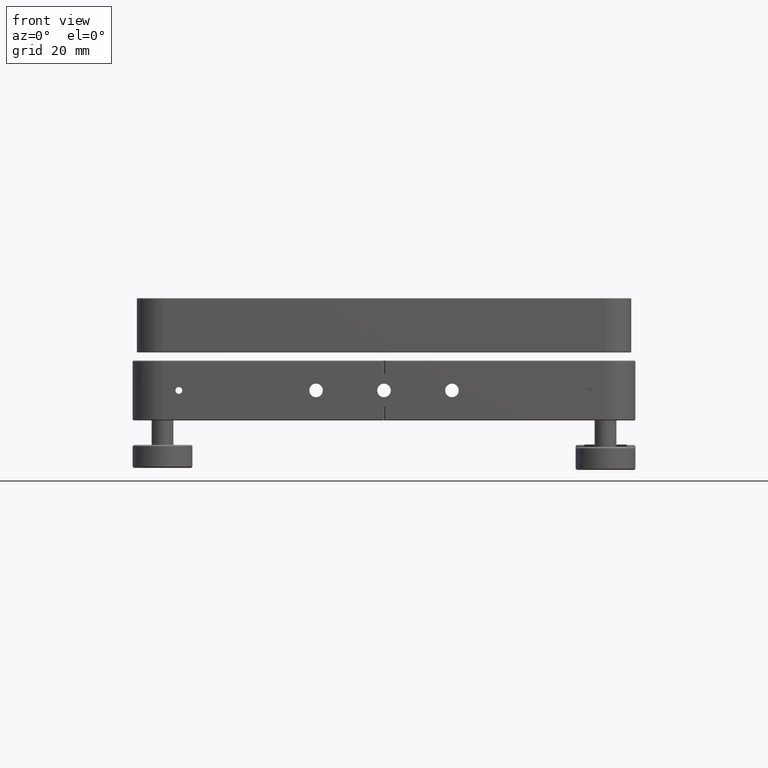
[diagram: clean part render]
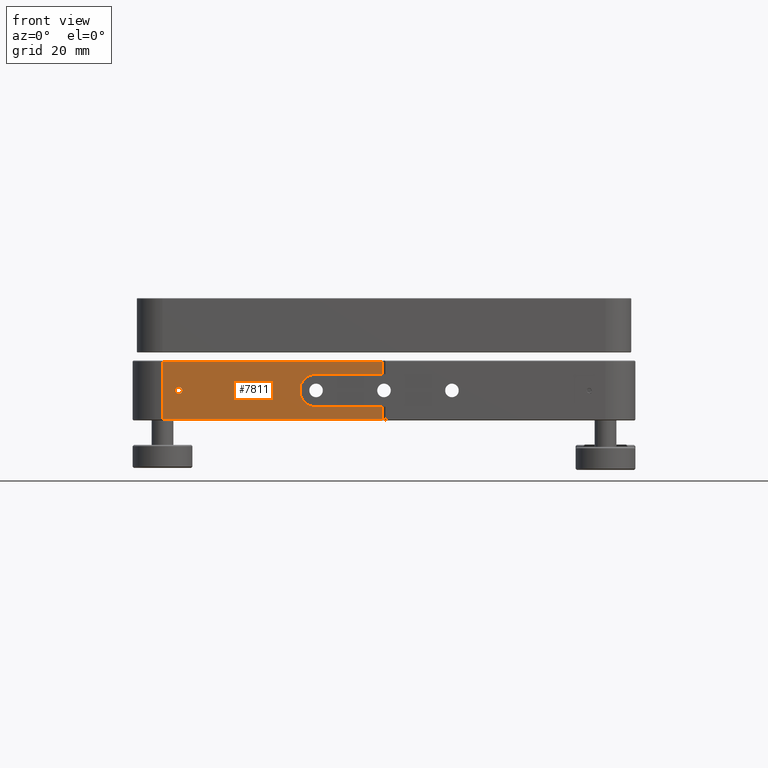
[diagram: same view with one face highlighted and labeled with its STEP entity id]
A machine part, front view. The second image highlights one B-rep face of the part: STEP entity #7811.
In plain terms, the highlighted planar face has unit normal (0, 1, 0).
Its self-contained STEP definition (entity closure, byte-faithful):
#176 = DIRECTION ( 'NONE',  ( 1.000000000000000000, -0.000000000000000000, 3.122502256758252277E-16 ) ) ;
#188 = EDGE_CURVE ( 'NONE', #9180, #625, #12560, .T. ) ;
#587 = CARTESIAN_POINT ( 'NONE',  ( -75.50000000000000000, -92.50000000000000000, -1.249999999999978462 ) ) ;
#597 = EDGE_CURVE ( 'NONE', #9881, #6962, #10471, .T. ) ;
#625 = VERTEX_POINT ( 'NONE', #4108 ) ;
#689 = EDGE_CURVE ( 'NONE', #2174, #8260, #2777, .T. ) ;
#892 = DIRECTION ( 'NONE',  ( 0.000000000000000000, 1.000000000000000000, 0.000000000000000000 ) ) ;
#1257 = DIRECTION ( 'NONE',  ( -0.000000000000000000, -0.000000000000000000, -1.000000000000000000 ) ) ;
#1378 = VECTOR ( 'NONE', #1257, 1000.000000000000000 ) ;
#1511 = CARTESIAN_POINT ( 'NONE',  ( -25.00000000000000000, -92.50000000000000000, 6.123233995736761352E-15 ) ) ;
#1632 = CARTESIAN_POINT ( 'NONE',  ( -0.5000000000000156541, -92.50000000000000000, 10.69999999999997620 ) ) ;
#1666 = LINE ( 'NONE', #6681, #3442 ) ;
#1878 = CARTESIAN_POINT ( 'NONE',  ( -75.50000000000000000, -92.50000000000000000, 8.673617379884035472E-15 ) ) ;
#2029 = CARTESIAN_POINT ( 'NONE',  ( -25.00000000000000000, -92.50000000000000000, 6.000000000000005329 ) ) ;
#2156 = LINE ( 'NONE', #11249, #3120 ) ;
#2174 = VERTEX_POINT ( 'NONE', #2647 ) ;
#2411 = CARTESIAN_POINT ( 'NONE',  ( -81.50000000000000000, -92.50000000000000000, 10.70000000000000462 ) ) ;
#2531 = DIRECTION ( 'NONE',  ( -1.000000000000000000, 0.000000000000000000, 0.000000000000000000 ) ) ;
#2629 = ORIENTED_EDGE ( 'NONE', *, *, #9457, .T. ) ;
#2644 = DIRECTION ( 'NONE',  ( 1.000000000000000000, 0.000000000000000000, 0.000000000000000000 ) ) ;
#2647 = CARTESIAN_POINT ( 'NONE',  ( -81.50000000000000000, -92.50000000000000000, -10.69999999999992113 ) ) ;
#2777 = LINE ( 'NONE', #6863, #3104 ) ;
#2937 = EDGE_CURVE ( 'NONE', #8676, #8260, #10360, .T. ) ;
#3104 = VECTOR ( 'NONE', #2644, 1000.000000000000000 ) ;
#3120 = VECTOR ( 'NONE', #176, 1000.000000000000000 ) ;
#3153 = VERTEX_POINT ( 'NONE', #2029 ) ;
#3273 = AXIS2_PLACEMENT_3D ( 'NONE', #8451, #8321, #11295 ) ;
#3442 = VECTOR ( 'NONE', #2531, 1000.000000000000000 ) ;
#3482 = DIRECTION ( 'NONE',  ( -0.000000000000000000, -0.000000000000000000, -1.000000000000000000 ) ) ;
#3546 = CARTESIAN_POINT ( 'NONE',  ( -0.5000000000000156541, -92.50000000000000000, 11.00000000000000000 ) ) ;
#3795 = ORIENTED_EDGE ( 'NONE', *, *, #2937, .F. ) ;
#3869 = VERTEX_POINT ( 'NONE', #2411 ) ;
#4045 = DIRECTION ( 'NONE',  ( 0.000000000000000000, 0.000000000000000000, 1.000000000000000000 ) ) ;
#4108 = CARTESIAN_POINT ( 'NONE',  ( -0.5000000000000073275, -92.50000000000000000, 6.000000000000000888 ) ) ;
#4294 = CARTESIAN_POINT ( 'NONE',  ( -75.50000000000000000, -92.50000000000000000, 1.249999999999996003 ) ) ;
#4429 = ORIENTED_EDGE ( 'NONE', *, *, #8361, .T. ) ;
#4657 = EDGE_CURVE ( 'NONE', #11608, #8676, #2156, .T. ) ;
#5087 = FACE_OUTER_BOUND ( 'NONE', #10178, .T. ) ;
#5147 = DIRECTION ( 'NONE',  ( 0.000000000000000000, -0.000000000000000000, 1.000000000000000000 ) ) ;
#5260 = EDGE_LOOP ( 'NONE', ( #6905, #2629 ) ) ;
#5283 = CARTESIAN_POINT ( 'NONE',  ( -81.50000000000000000, -92.50000000000000000, 11.00000000000000000 ) ) ;
#5469 = ORIENTED_EDGE ( 'NONE', *, *, #5704, .F. ) ;
#5704 = EDGE_CURVE ( 'NONE', #625, #3153, #11396, .T. ) ;
#5741 = DIRECTION ( 'NONE',  ( 0.000000000000000000, -1.000000000000000000, 0.000000000000000000 ) ) ;
#5893 = FACE_BOUND ( 'NONE', #5260, .T. ) ;
#6070 = VECTOR ( 'NONE', #10546, 1000.000000000000000 ) ;
#6083 = DIRECTION ( 'NONE',  ( 0.000000000000000000, 1.000000000000000000, 0.000000000000000000 ) ) ;
#6681 = CARTESIAN_POINT ( 'NONE',  ( -81.50000000000000000, -92.50000000000000000, 10.69999999999997620 ) ) ;
#6855 = CIRCLE ( 'NONE', #3273, 1.249999999999987121 ) ;
#6863 = CARTESIAN_POINT ( 'NONE',  ( -92.50000000000000000, -92.50000000000000000, -10.69999999999992113 ) ) ;
#6899 = EDGE_CURVE ( 'NONE', #3869, #2174, #7459, .T. ) ;
#6905 = ORIENTED_EDGE ( 'NONE', *, *, #597, .T. ) ;
#6962 = VERTEX_POINT ( 'NONE', #587 ) ;
#7046 = EDGE_CURVE ( 'NONE', #3153, #11608, #11751, .T. ) ;
#7334 = CARTESIAN_POINT ( 'NONE',  ( -0.5000000000000156541, -92.50000000000000000, -5.999999999999998224 ) ) ;
#7459 = LINE ( 'NONE', #5283, #12010 ) ;
#7811 = ADVANCED_FACE ( 'NONE', ( #5893, #5087 ), #9896, .F. ) ;
#7945 = AXIS2_PLACEMENT_3D ( 'NONE', #1878, #892, #4045 ) ;
#8260 = VERTEX_POINT ( 'NONE', #8317 ) ;
#8317 = CARTESIAN_POINT ( 'NONE',  ( -0.5000000000000156541, -92.50000000000000000, -10.69999999999992113 ) ) ;
#8321 = DIRECTION ( 'NONE',  ( 0.000000000000000000, 1.000000000000000000, 0.000000000000000000 ) ) ;
#8361 = EDGE_CURVE ( 'NONE', #9180, #3869, #1666, .T. ) ;
#8451 = CARTESIAN_POINT ( 'NONE',  ( -75.50000000000000000, -92.50000000000000000, 8.673617379884035472E-15 ) ) ;
#8676 = VERTEX_POINT ( 'NONE', #7334 ) ;
#9101 = ORIENTED_EDGE ( 'NONE', *, *, #689, .T. ) ;
#9180 = VERTEX_POINT ( 'NONE', #1632 ) ;
#9222 = CARTESIAN_POINT ( 'NONE',  ( -0.5000000000000156541, -92.50000000000000000, 11.00000000000000000 ) ) ;
#9457 = EDGE_CURVE ( 'NONE', #6962, #9881, #6855, .T. ) ;
#9881 = VERTEX_POINT ( 'NONE', #4294 ) ;
#9896 = PLANE ( 'NONE',  #10142 ) ;
#9996 = ORIENTED_EDGE ( 'NONE', *, *, #4657, .F. ) ;
#10038 = CARTESIAN_POINT ( 'NONE',  ( -25.00000000000000000, -92.50000000000000000, -6.000000000000005329 ) ) ;
#10142 = AXIS2_PLACEMENT_3D ( 'NONE', #10958, #6083, #5147 ) ;
#10178 = EDGE_LOOP ( 'NONE', ( #12484, #4429, #11506, #9101, #3795, #9996, #11999, #5469 ) ) ;
#10290 = DIRECTION ( 'NONE',  ( -0.000000000000000000, 0.000000000000000000, -1.000000000000000000 ) ) ;
#10360 = LINE ( 'NONE', #9222, #1378 ) ;
#10471 = CIRCLE ( 'NONE', #7945, 1.249999999999987121 ) ;
#10546 = DIRECTION ( 'NONE',  ( -1.000000000000000000, 0.000000000000000000, -3.122502256758253263E-16 ) ) ;
#10679 = DIRECTION ( 'NONE',  ( 0.000000000000000000, 0.000000000000000000, -1.000000000000000000 ) ) ;
#10958 = CARTESIAN_POINT ( 'NONE',  ( -92.50000000000000000, -92.50000000000000000, 11.00000000000000000 ) ) ;
#11249 = CARTESIAN_POINT ( 'NONE',  ( 25.00000000000000711, -92.50000000000000000, -5.999999999999989342 ) ) ;
#11295 = DIRECTION ( 'NONE',  ( 0.000000000000000000, 0.000000000000000000, 1.000000000000000000 ) ) ;
#11396 = LINE ( 'NONE', #12494, #6070 ) ;
#11506 = ORIENTED_EDGE ( 'NONE', *, *, #6899, .T. ) ;
#11608 = VERTEX_POINT ( 'NONE', #10038 ) ;
#11751 = CIRCLE ( 'NONE', #12997, 5.999999999999999112 ) ;
#11999 = ORIENTED_EDGE ( 'NONE', *, *, #7046, .F. ) ;
#12010 = VECTOR ( 'NONE', #10290, 1000.000000000000000 ) ;
#12484 = ORIENTED_EDGE ( 'NONE', *, *, #188, .F. ) ;
#12494 = CARTESIAN_POINT ( 'NONE',  ( 24.99999999999999289, -92.50000000000000000, 6.000000000000008882 ) ) ;
#12560 = LINE ( 'NONE', #3546, #12821 ) ;
#12821 = VECTOR ( 'NONE', #3482, 1000.000000000000000 ) ;
#12997 = AXIS2_PLACEMENT_3D ( 'NONE', #1511, #5741, #10679 ) ;